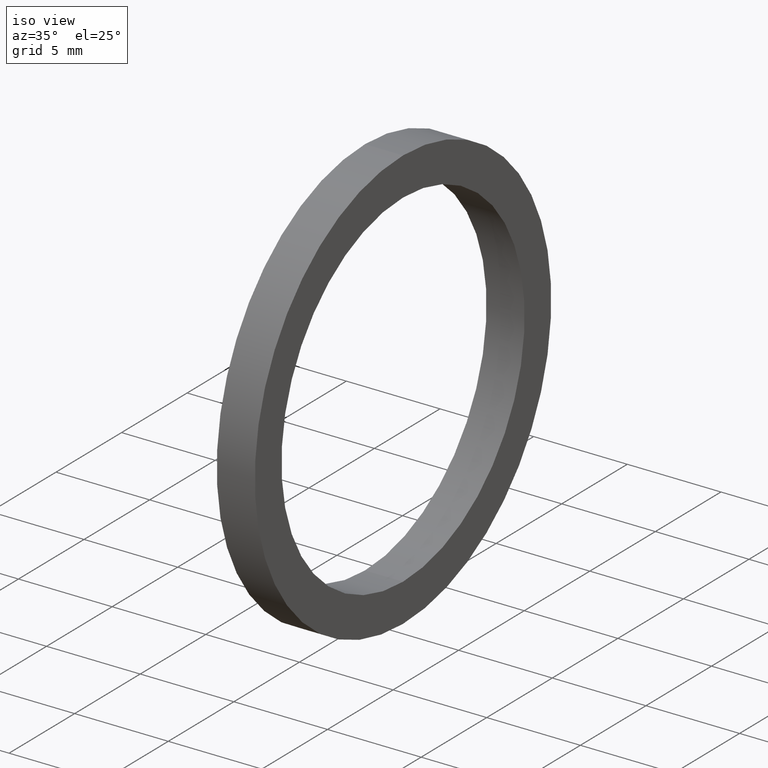
[diagram: clean part render]
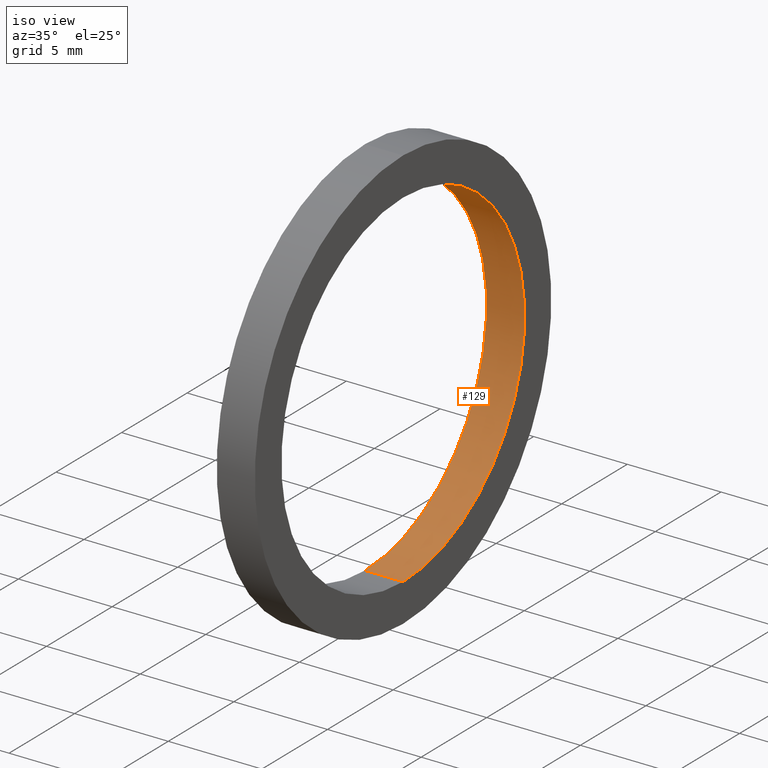
[diagram: same view with one face highlighted and labeled with its STEP entity id]
A machine part, iso view. The second image highlights one B-rep face of the part: STEP entity #129.
In plain terms, the highlighted cylindrical surface (partial cylindrical patch) has radius 9.271 mm, axis along (-1, 0, 0).
Its self-contained STEP definition (entity closure, byte-faithful):
#2 = DIRECTION ( 'NONE',  ( 0.0000000000000000000, 0.0000000000000000000, 1.000000000000000000 ) ) ;
#3 = DIRECTION ( 'NONE',  ( -1.000000000000000000, 0.0000000000000000000, 0.0000000000000000000 ) ) ;
#4 = AXIS2_PLACEMENT_3D ( 'NONE', #6, #3, #2 ) ;
#5 = CYLINDRICAL_SURFACE ( 'NONE', #4, 0.3649999999999999900 ) ;
#6 = CARTESIAN_POINT ( 'NONE',  ( -1.721125226614714300, 0.0000000000000000000, 0.0000000000000000000 ) ) ;
#7 = FACE_OUTER_BOUND ( 'NONE', #127, .T. ) ;
#31 = DIRECTION ( 'NONE',  ( -1.000000000000000000, 0.0000000000000000000, 0.0000000000000000000 ) ) ;
#32 = VECTOR ( 'NONE', #31, 39.37007874015748100 ) ;
#33 = CARTESIAN_POINT ( 'NONE',  ( -1.721125226614714300, 0.0000000000000000000, 0.3649999999999999900 ) ) ;
#34 = DIRECTION ( 'NONE',  ( 0.0000000000000000000, 0.0000000000000000000, 1.000000000000000000 ) ) ;
#35 = DIRECTION ( 'NONE',  ( -1.000000000000000000, 0.0000000000000000000, 0.0000000000000000000 ) ) ;
#36 = AXIS2_PLACEMENT_3D ( 'NONE', #37, #35, #34 ) ;
#37 = CARTESIAN_POINT ( 'NONE',  ( 0.0000000000000000000, 0.0000000000000000000, 0.0000000000000000000 ) ) ;
#38 = CIRCLE ( 'NONE', #36, 0.3649999999999999900 ) ;
#39 = LINE ( 'NONE', #33, #32 ) ;
#56 = EDGE_CURVE ( 'NONE', #78, #80, #38, .T. ) ;
#58 = EDGE_CURVE ( 'NONE', #82, #78, #39, .T. ) ;
#78 = VERTEX_POINT ( 'NONE', #105 ) ;
#80 = VERTEX_POINT ( 'NONE', #104 ) ;
#81 = EDGE_CURVE ( 'NONE', #84, #80, #103, .T. ) ;
#82 = VERTEX_POINT ( 'NONE', #99 ) ;
#84 = VERTEX_POINT ( 'NONE', #93 ) ;
#93 = CARTESIAN_POINT ( 'NONE',  ( 0.07999999999999996000, 4.469960816887839200E-017, -0.3649999999999999900 ) ) ;
#99 = CARTESIAN_POINT ( 'NONE',  ( 0.07999999999999996000, 0.0000000000000000000, 0.3649999999999999900 ) ) ;
#100 = DIRECTION ( 'NONE',  ( -1.000000000000000000, 0.0000000000000000000, 0.0000000000000000000 ) ) ;
#101 = VECTOR ( 'NONE', #100, 39.37007874015748100 ) ;
#102 = CARTESIAN_POINT ( 'NONE',  ( -1.721125226614714300, 4.469960816887839200E-017, -0.3649999999999999900 ) ) ;
#103 = LINE ( 'NONE', #102, #101 ) ;
#104 = CARTESIAN_POINT ( 'NONE',  ( 0.0000000000000000000, 4.469960816887839200E-017, -0.3649999999999999900 ) ) ;
#105 = CARTESIAN_POINT ( 'NONE',  ( 0.0000000000000000000, 0.0000000000000000000, 0.3649999999999999900 ) ) ;
#123 = ORIENTED_EDGE ( 'NONE', *, *, #56, .T. ) ;
#127 = EDGE_LOOP ( 'NONE', ( #132, #128, #133, #123 ) ) ;
#128 = ORIENTED_EDGE ( 'NONE', *, *, #139, .F. ) ;
#129 = ADVANCED_FACE ( 'NONE', ( #7 ), #5, .F. ) ;
#132 = ORIENTED_EDGE ( 'NONE', *, *, #81, .F. ) ;
#133 = ORIENTED_EDGE ( 'NONE', *, *, #58, .T. ) ;
#139 = EDGE_CURVE ( 'NONE', #82, #84, #144, .T. ) ;
#144 = CIRCLE ( 'NONE', #155, 0.3649999999999999900 ) ;
#153 = DIRECTION ( 'NONE',  ( -1.000000000000000000, 0.0000000000000000000, 0.0000000000000000000 ) ) ;
#154 = CARTESIAN_POINT ( 'NONE',  ( 0.07999999999999996000, 0.0000000000000000000, 0.0000000000000000000 ) ) ;
#155 = AXIS2_PLACEMENT_3D ( 'NONE', #154, #153, #160 ) ;
#160 = DIRECTION ( 'NONE',  ( 0.0000000000000000000, 0.0000000000000000000, 1.000000000000000000 ) ) ;